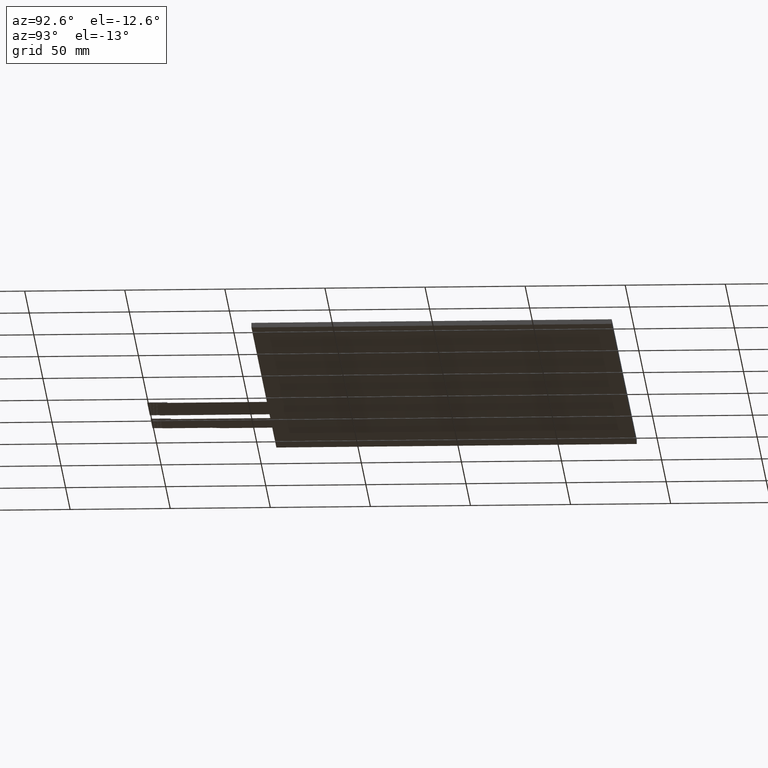
[diagram: clean part render]
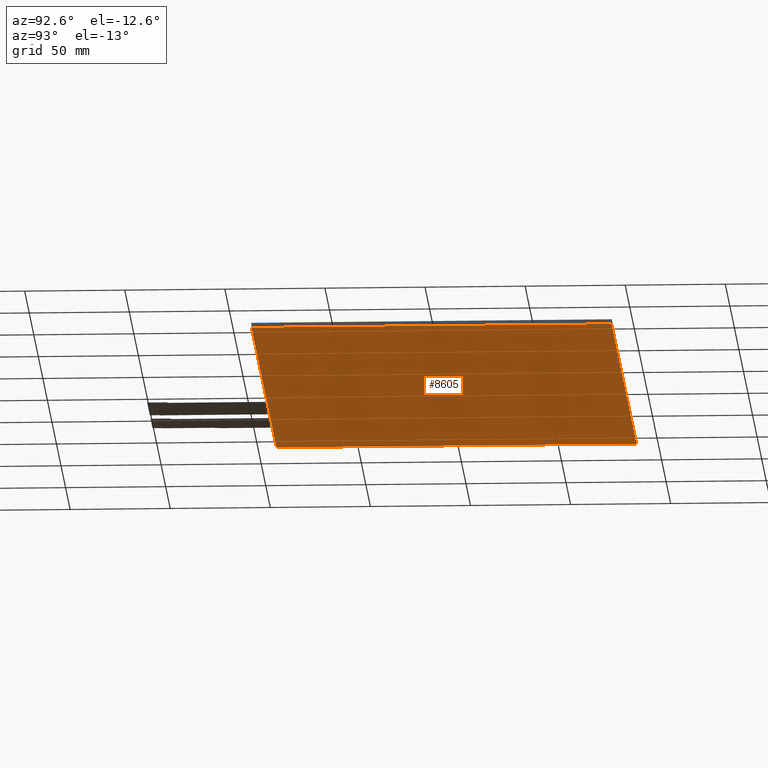
[diagram: same view with one face highlighted and labeled with its STEP entity id]
A machine part, auxiliary view. The second image highlights one B-rep face of the part: STEP entity #8605.
In plain terms, the highlighted planar face has unit normal (0, 0, -1).
Its self-contained STEP definition (entity closure, byte-faithful):
#475=PLANE('',#9043);
#885=FACE_OUTER_BOUND('',#1297,.T.);
#1297=EDGE_LOOP('',(#8185,#8186,#8187,#8188));
#2499=LINE('',#13515,#3709);
#2502=LINE('',#13521,#3712);
#2505=LINE('',#13527,#3715);
#2508=LINE('',#13531,#3718);
#3709=VECTOR('',#11073,10.);
#3712=VECTOR('',#11078,10.);
#3715=VECTOR('',#11083,10.);
#3718=VECTOR('',#11088,10.);
#4533=VERTEX_POINT('',#13512);
#4534=VERTEX_POINT('',#13514);
#4536=VERTEX_POINT('',#13520);
#4538=VERTEX_POINT('',#13526);
#5747=EDGE_CURVE('',#4534,#4533,#2499,.T.);
#5750=EDGE_CURVE('',#4536,#4534,#2502,.T.);
#5753=EDGE_CURVE('',#4538,#4536,#2505,.T.);
#5756=EDGE_CURVE('',#4533,#4538,#2508,.T.);
#8185=ORIENTED_EDGE('',*,*,#5756,.T.);
#8186=ORIENTED_EDGE('',*,*,#5753,.T.);
#8187=ORIENTED_EDGE('',*,*,#5750,.T.);
#8188=ORIENTED_EDGE('',*,*,#5747,.T.);
#8605=ADVANCED_FACE('',(#885),#475,.T.);
#9043=AXIS2_PLACEMENT_3D('',#13532,#11089,#11090);
#11073=DIRECTION('',(9.86864910777917E-17,-1.,0.));
#11078=DIRECTION('',(1.,0.,0.));
#11083=DIRECTION('',(-1.97372982155583E-16,1.,0.));
#11088=DIRECTION('',(-1.,-6.45947941600091E-17,0.));
#11089=DIRECTION('center_axis',(0.,0.,-1.));
#11090=DIRECTION('ref_axis',(-1.,0.,0.));
#13512=CARTESIAN_POINT('',(137.33,-91.85,-2.35));
#13514=CARTESIAN_POINT('',(137.33,88.15,-2.35));
#13515=CARTESIAN_POINT('',(137.33,-91.85,-2.35));
#13520=CARTESIAN_POINT('',(-137.67,88.15,-2.35));
#13521=CARTESIAN_POINT('',(137.33,88.15,-2.35));
#13526=CARTESIAN_POINT('',(-137.67,-91.85,-2.35));
#13527=CARTESIAN_POINT('',(-137.67,88.15,-2.35));
#13531=CARTESIAN_POINT('',(-137.67,-91.85,-2.35));
#13532=CARTESIAN_POINT('Origin',(-0.17000000000003,-1.85,-2.35));